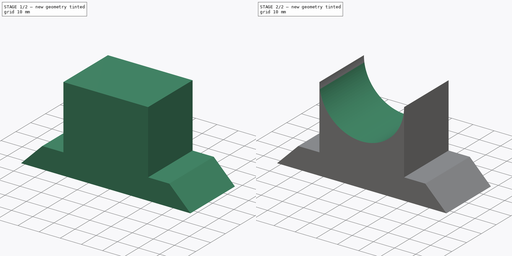
[diagram: build sequence overview — one tinted view per stage of 2, left to right]
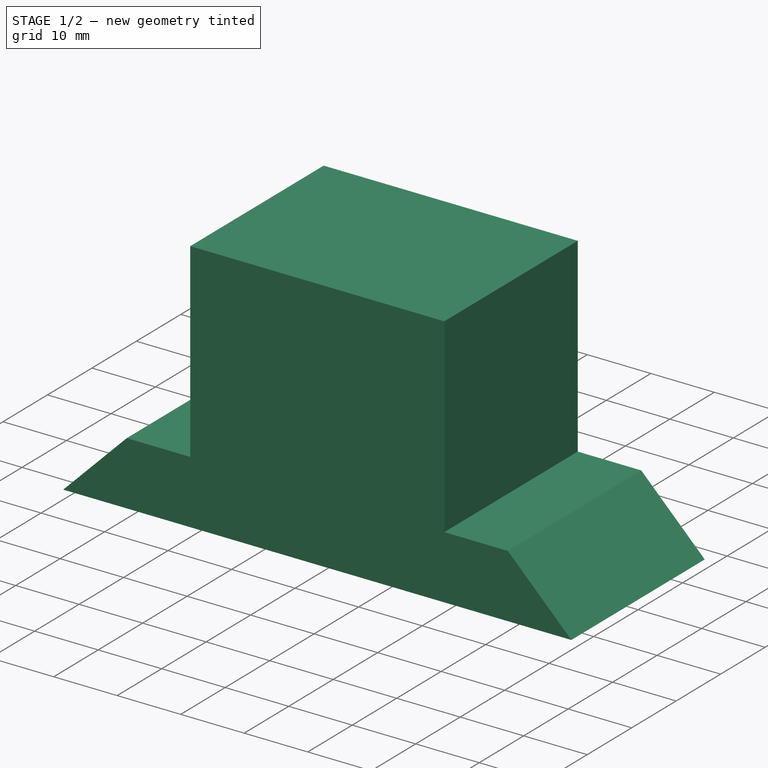
[diagram: stage 1 of 2 — iso view after this stage's code; geometry added in this stage tinted green]
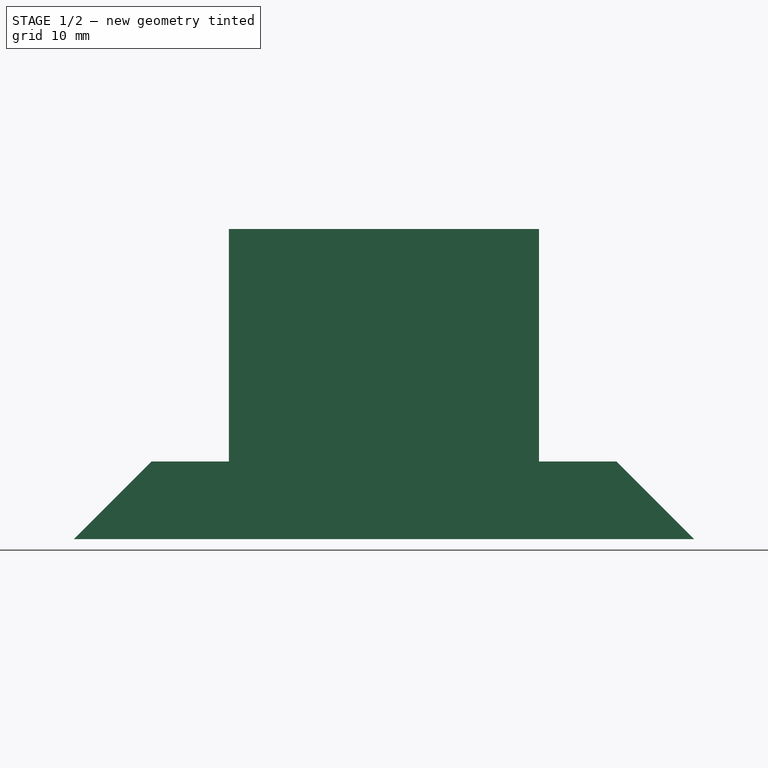
[diagram: stage 1 of 2 — front view after this stage's code; geometry added in this stage tinted green]
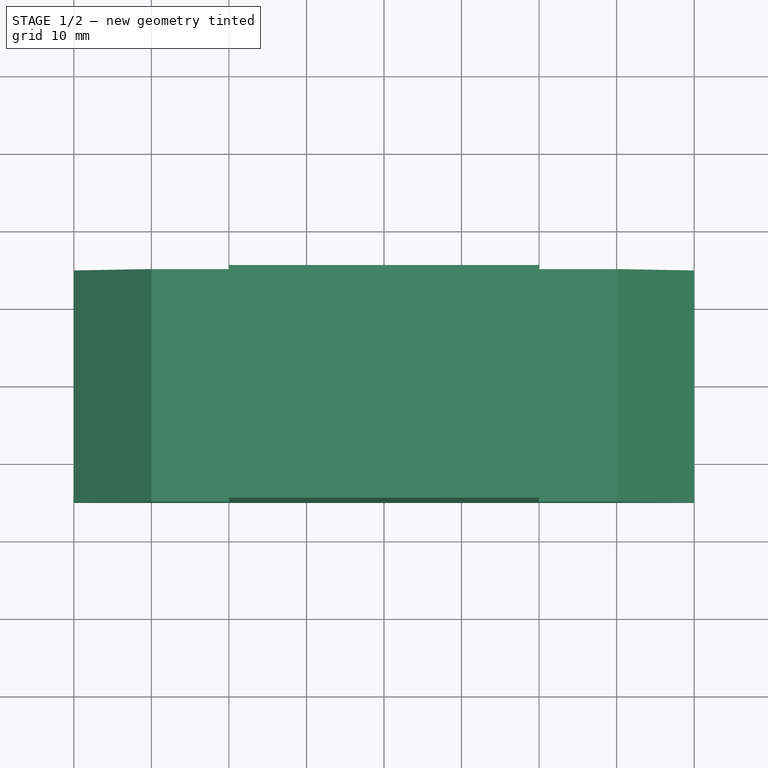
[diagram: stage 1 of 2 — top view after this stage's code; geometry added in this stage tinted green]
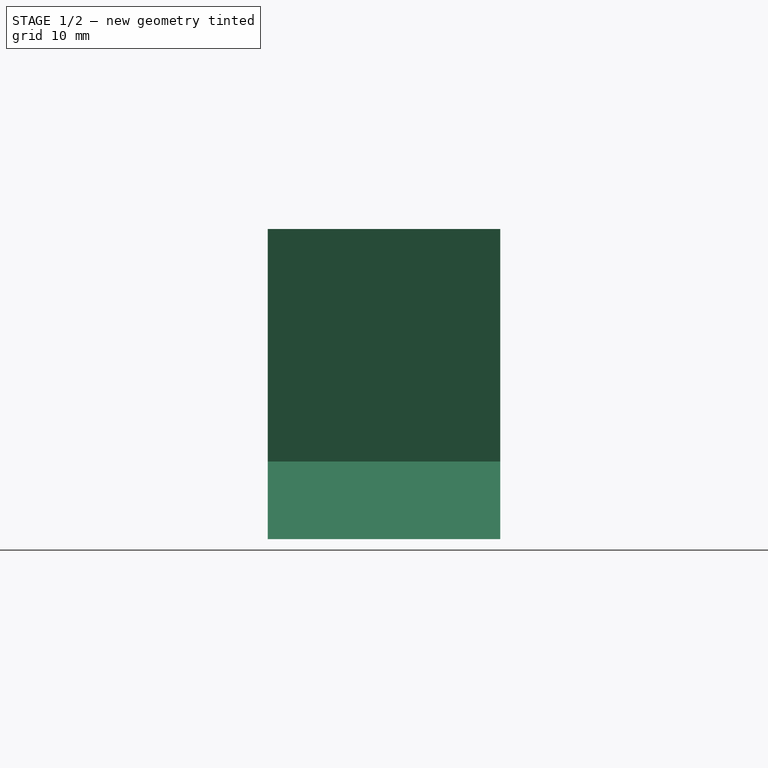
[diagram: stage 1 of 2 — right view after this stage's code; geometry added in this stage tinted green]
FCSTD DOCUMENT  (FreeCAD 1.0R39109 (Git))
Label: 1
License: All rights reserved
LicenseURL: https://en.wikipedia.org/wiki/All_rights_reserved
objects: Sketcher::SketchObject×2, PartDesign::Pad×1, PartDesign::Mirrored×1, PartDesign::Pocket×1, PartDesign::Body×1
note: 13 computed .brp shape members not serialized (recipe doc carries the construction recipe); baked Part::Feature solids carry a one-line shape summary decoded from their .brp

FEATURE [Sketcher::SketchObject] Sketch
  ArcFitTolerance = 1e-06
  AttachmentSupport = -> [XZ_Plane]
  FullyConstrained = true
  MakeInternals = false
  MapMode = 5
  Placement = pos=(0,0,0) rot=(1,0,0;1.5708rad)
  sketch-geometry (6):
    g0: LineSegment StartX=0 StartY=40 StartZ=0 EndX=-20 EndY=40 EndZ=0
    g1: LineSegment StartX=-20 StartY=40 StartZ=0 EndX=-20 EndY=10 EndZ=0
    g2: LineSegment StartX=-20 StartY=10 StartZ=0 EndX=-30 EndY=10 EndZ=0
    g3: LineSegment StartX=-30 StartY=10 StartZ=0 EndX=-40 EndY=-1e-16 EndZ=0
    g4: LineSegment StartX=-40 StartY=-1e-16 StartZ=0 EndX=0 EndY=0 EndZ=0
    g5: LineSegment StartX=0 StartY=0 StartZ=0 EndX=0 EndY=40 EndZ=0
  constraints (17):
    c: PointOnObject(g3,g-1)
    c: Coincident(g0,g1)
    c: Vertical(g1)
    c: Coincident(g1,g2)
    c: Horizontal(g2)
    c: Coincident(g2,g3)
    c: Coincident(g3,g4)
    c: Coincident(g4,g-1)
    c: Coincident(g4,g5)
    c: PointOnObject(g5,g-2)
    c: Coincident(g0,g5)
    c: Horizontal(g0)
    c: Angle(g4,g3) = 0.785398
    c: DistanceX(g3,g-1) = 40
    c: DistanceX(g3,g2) = 10
    c: DistanceY(g-1,g0) = 40
    c: DistanceX(g2,g2) = 10
FEATURE [PartDesign::Pad] Pad
  Direction = (0,-1,2e-16)
  Length = 30
  Length2 = 10
  Midplane = true
  Placement = pos=(0,0,0) rot=(1,0,0;1.5708rad)
  Profile = -> Sketch
  ReferenceAxis = -> Sketch [N_Axis]
  Refine = true
  Suppressed = false
  Type = 0
FEATURE [PartDesign::Mirrored] Mirrored
  BaseFeature = -> Pad
  MirrorPlane = -> YZ_Plane
  Placement = pos=(0,0,0) rot=(1,0,0;1.5708rad)
  Refine = true
  Suppressed = false
  TransformMode = 1
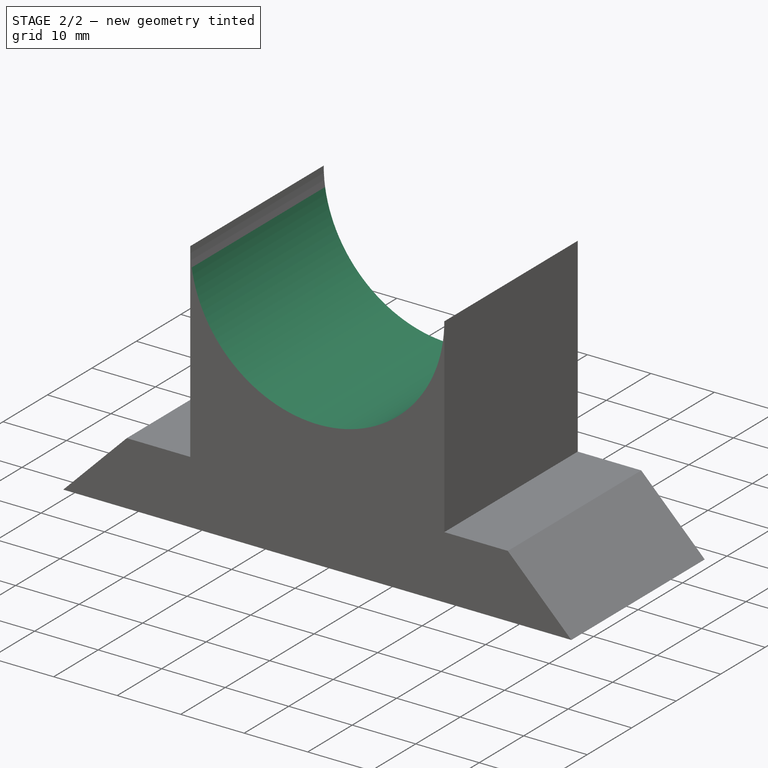
[diagram: stage 2 of 2 — iso view after this stage's code; geometry added in this stage tinted green]
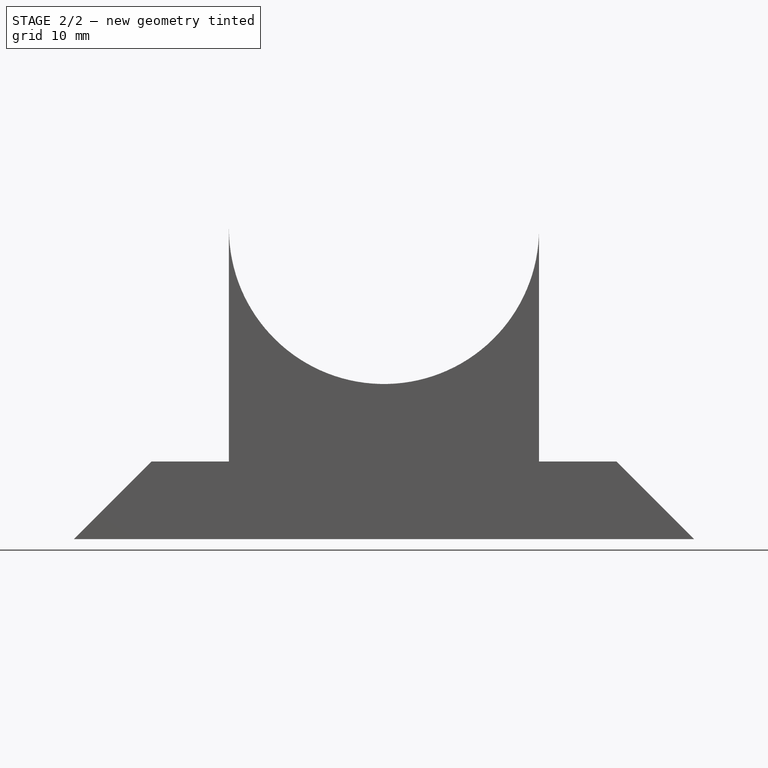
[diagram: stage 2 of 2 — front view after this stage's code; geometry added in this stage tinted green]
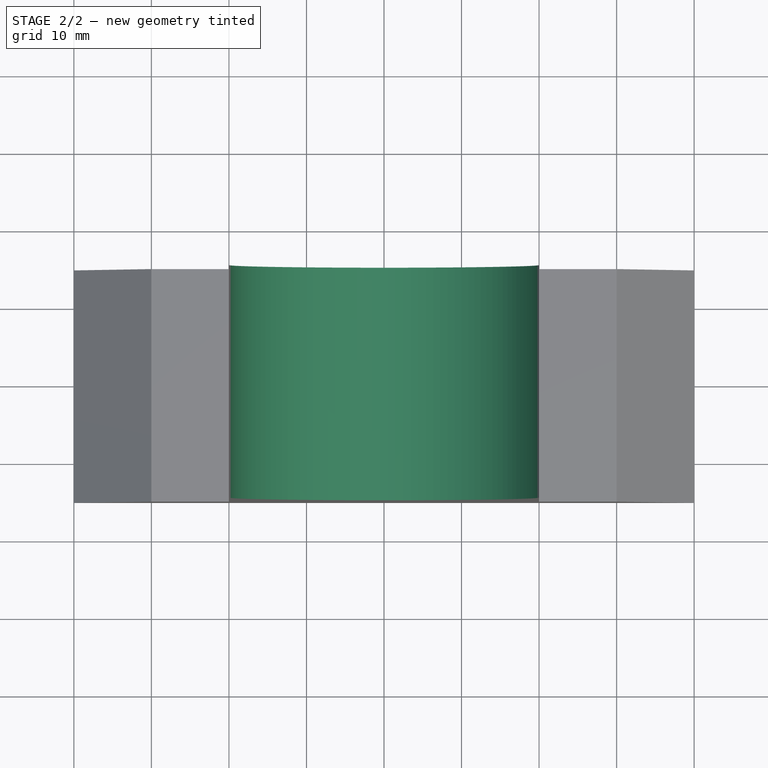
[diagram: stage 2 of 2 — top view after this stage's code; geometry added in this stage tinted green]
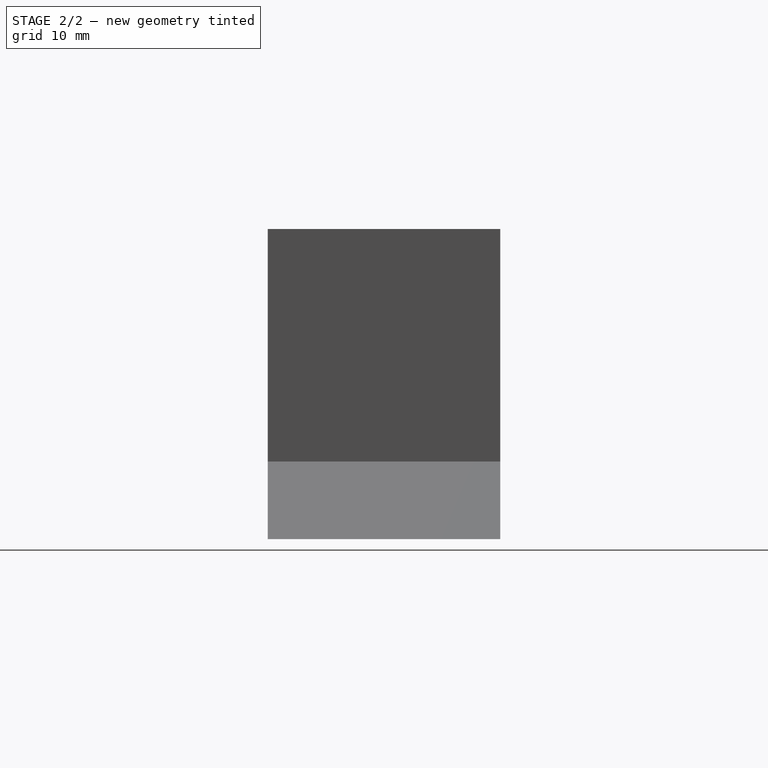
[diagram: stage 2 of 2 — right view after this stage's code; geometry added in this stage tinted green]
FEATURE [Sketcher::SketchObject] Sketch001
  ArcFitTolerance = 1e-06
  AttachmentSupport = -> [Mirrored]
  ExternalGeometry = -> [Mirrored]
  FullyConstrained = true
  MakeInternals = false
  MapMode = 5
  Placement = pos=(0,-15,3.9e-15) rot=(1,0,0;1.5708rad)
  sketch-geometry (2):
    g0: Circle CenterX=0 CenterY=40 CenterZ=0 NormalX=0 NormalY=0 NormalZ=1 AngleXU=0 Radius=10
    g1: Circle CenterX=0 CenterY=40 CenterZ=0 NormalX=0 NormalY=0 NormalZ=1 AngleXU=0 Radius=20
  constraints (5):
    c: Diameter(g0) = 20
    c: PointOnObject(g0,g-2)
    c: PointOnObject(g0,g-3)
    c: Diameter(g1) = 40
    c: Coincident(g1,g0)
FEATURE [PartDesign::Pocket] Pocket
  BaseFeature = -> Mirrored
  Direction = (0,1,-2e-16)
  Length = 5
  Length2 = 5
  Midplane = true
  Placement = pos=(0,0,0) rot=(1,0,0;1.5708rad)
  Profile = -> Sketch001
  ReferenceAxis = -> Sketch001 [N_Axis]
  Refine = true
  Suppressed = false
  Type = 1
FEATURE [PartDesign::Body] Body
  AllowCompound = false
  Group = -> [Sketch,Pad,Mirrored,Sketch001,Pocket]
  Origin = -> Origin
  Tip = -> Mirrored
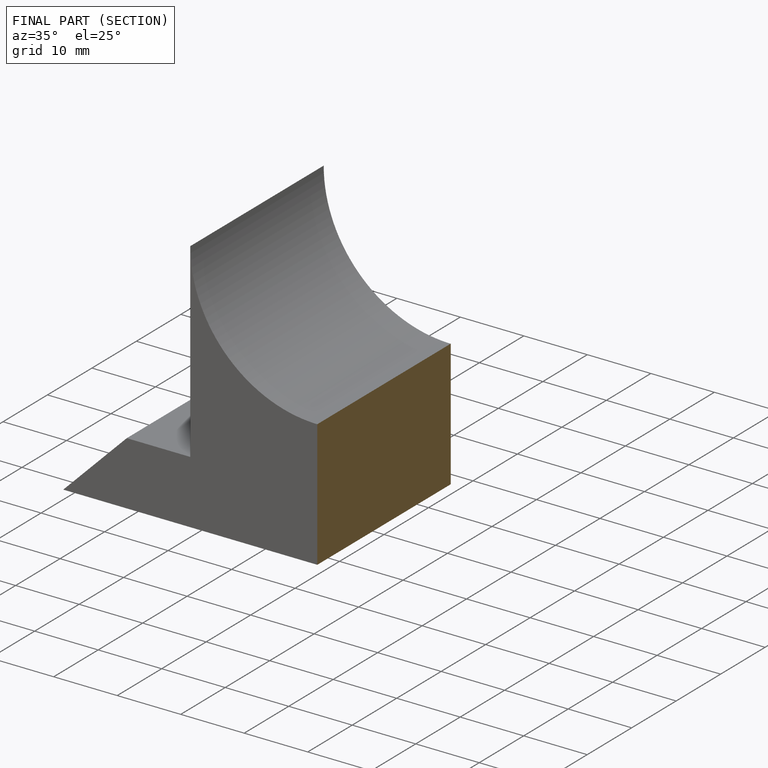
[diagram: finished part — half-section view (interior)]
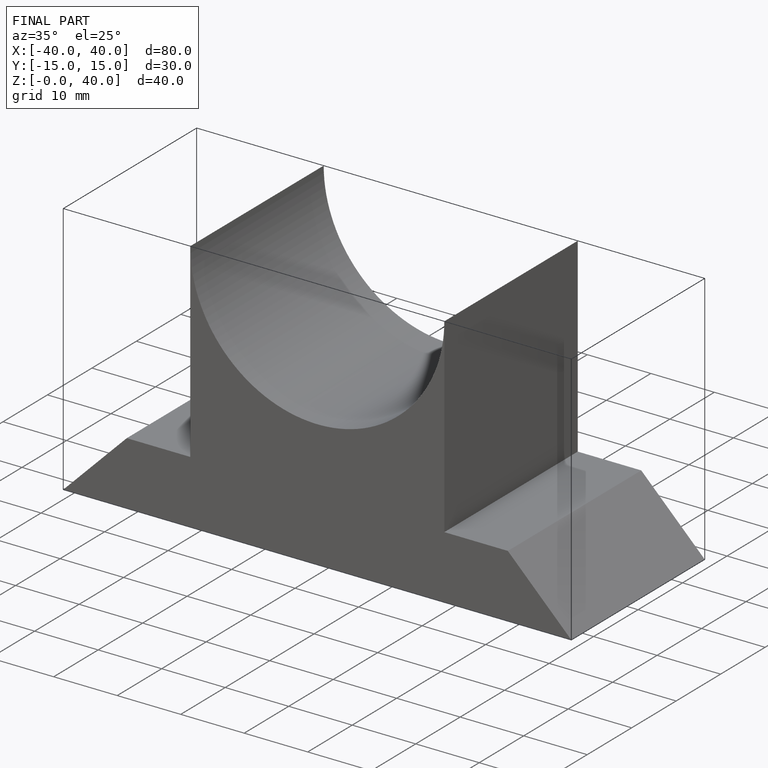
[diagram: finished part — iso view with bounding-box wireframe]
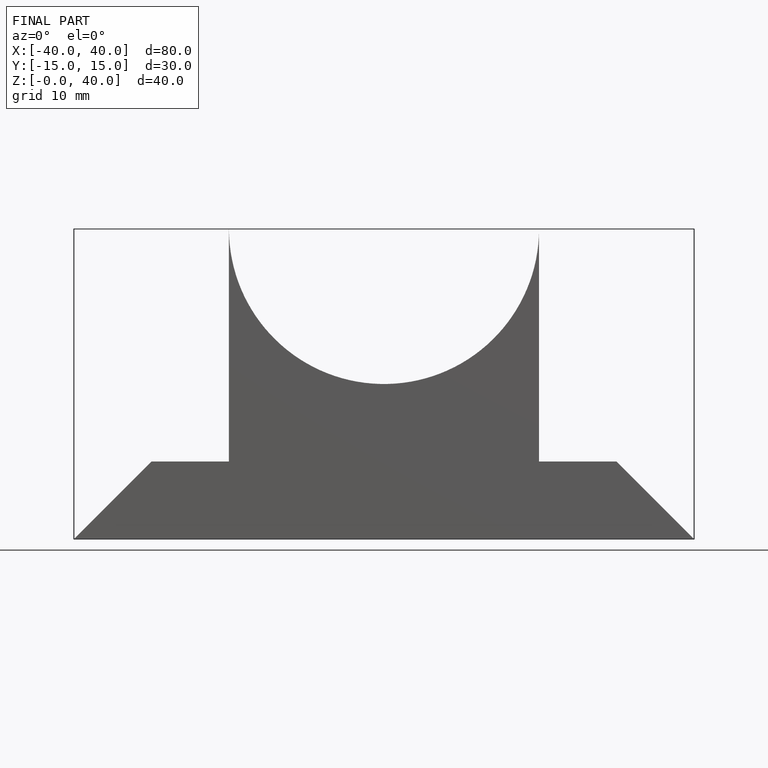
[diagram: finished part — front view with bounding-box wireframe]
